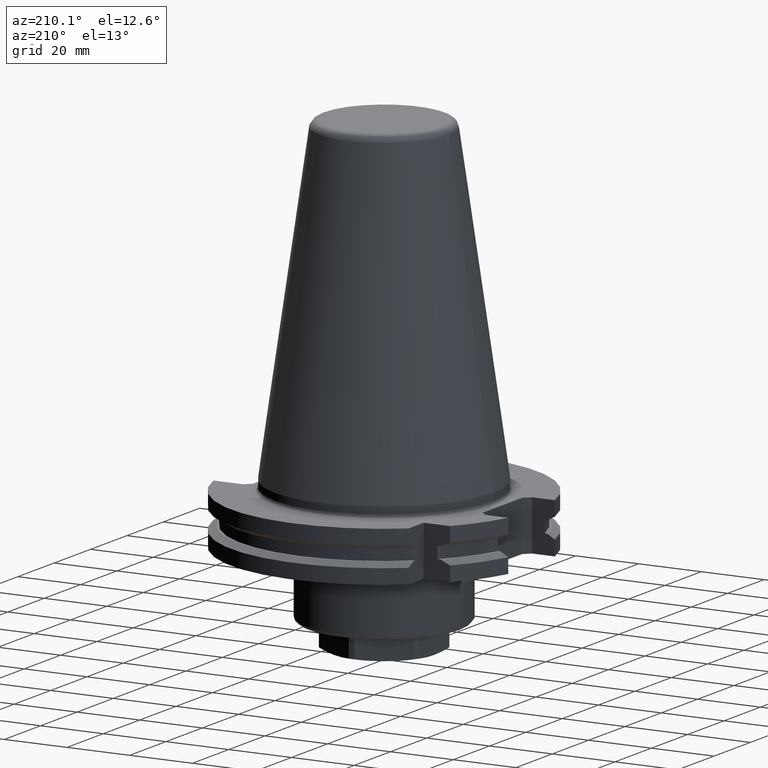
[diagram: clean part render]
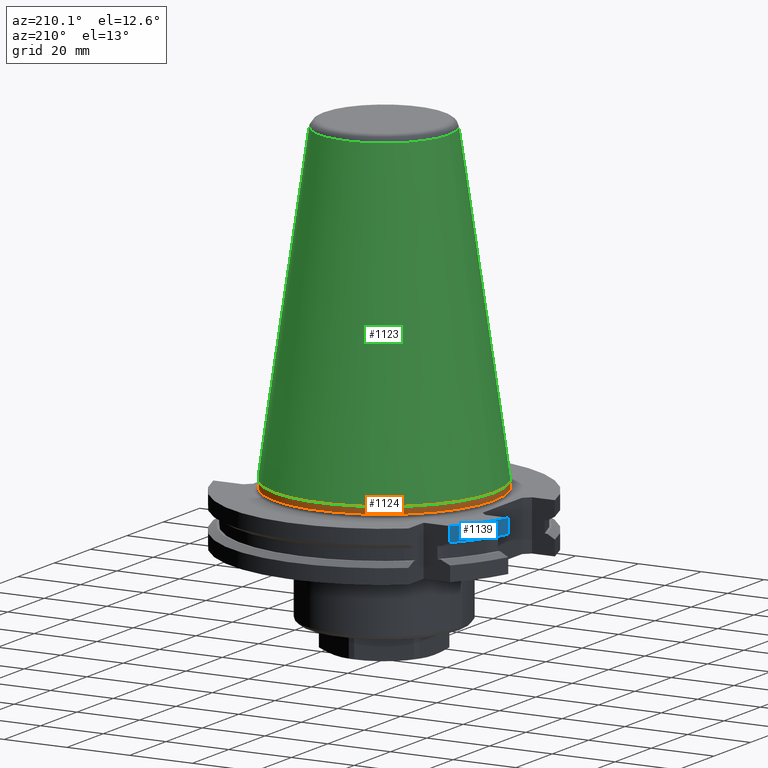
[diagram: same view with three faces highlighted in distinct colors, each labeled with its STEP entity id]
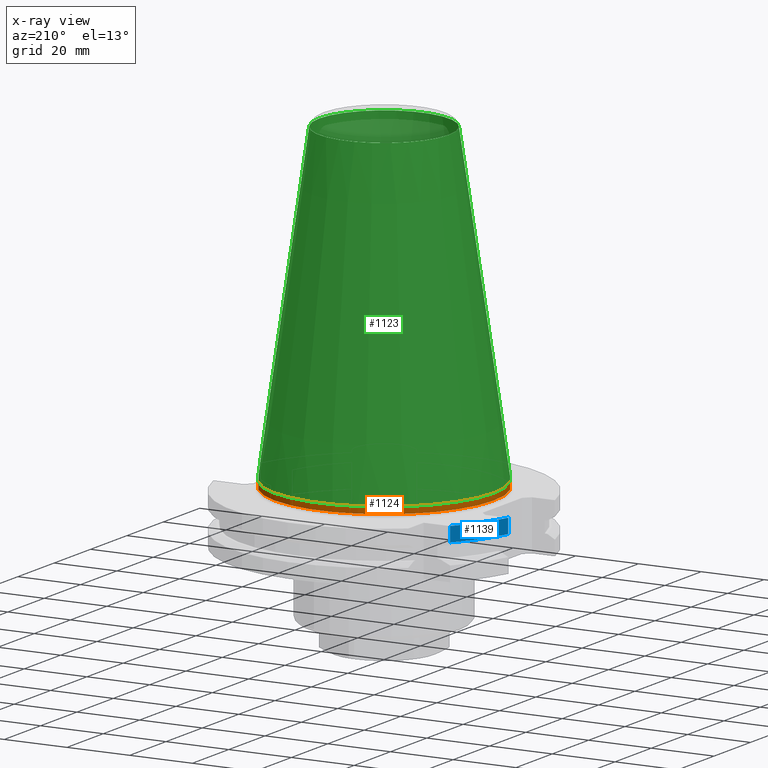
[diagram: x-ray of the same camera — body ghosted, the three highlighted faces saturated]
A machine part, auxiliary view with three faces highlighted in distinct colors.
The next image is the same camera in x-ray (body ghosted, the three faces saturated) — at least one of them is partly hidden behind the body in this view.
Their STEP definitions:

[orange] entity #1124 — the highlighted cylindrical surface (bore or boss wall) has radius 34.925 mm, axis along (0, 0, -1).
#214=CYLINDRICAL_SURFACE('',#1210,34.925);
#254=ORIENTED_EDGE('',*,*,#580,.T.);
#255=ORIENTED_EDGE('',*,*,#579,.T.);
#579=EDGE_CURVE('',#743,#743,#858,.T.);
#580=EDGE_CURVE('',#744,#744,#859,.T.);
#743=VERTEX_POINT('',#1663);
#744=VERTEX_POINT('',#1666);
#858=CIRCLE('',#1209,34.925);
#859=CIRCLE('',#1211,34.925);
#916=EDGE_LOOP('',(#254));
#917=EDGE_LOOP('',(#255));
#1005=FACE_BOUND('',#916,.T.);
#1006=FACE_BOUND('',#917,.T.);
#1124=ADVANCED_FACE('',(#1005,#1006),#214,.T.);
#1209=AXIS2_PLACEMENT_3D('',#1662,#1338,#1339);
#1210=AXIS2_PLACEMENT_3D('',#1664,#1340,#1341);
#1211=AXIS2_PLACEMENT_3D('',#1665,#1342,#1343);
#1338=DIRECTION('',(0.,0.,-1.));
#1339=DIRECTION('',(-1.,0.,0.));
#1340=DIRECTION('',(0.,0.,-1.));
#1341=DIRECTION('',(-1.,0.,0.));
#1342=DIRECTION('',(0.,0.,1.));
#1343=DIRECTION('',(1.,0.,0.));
#1662=CARTESIAN_POINT('',(0.,0.,0.));
#1663=CARTESIAN_POINT('',(-34.925,0.,0.));
#1664=CARTESIAN_POINT('',(0.,0.,-60.));
#1665=CARTESIAN_POINT('',(0.,0.,-2.2));
#1666=CARTESIAN_POINT('',(34.925,0.,-2.2));

[blue] entity #1139 — the highlighted cylindrical surface (partial cylindrical patch) has radius 48.75 mm, axis along (0, 0, -1).
#54=LINE('',#1805,#136);
#55=LINE('',#1809,#137);
#136=VECTOR('',#1435,1000.);
#137=VECTOR('',#1438,1000.);
#219=CYLINDRICAL_SURFACE('',#1242,48.75);
#324=ORIENTED_EDGE('',*,*,#635,.F.);
#325=ORIENTED_EDGE('',*,*,#636,.F.);
#326=ORIENTED_EDGE('',*,*,#637,.T.);
#327=ORIENTED_EDGE('',*,*,#622,.T.);
#622=EDGE_CURVE('',#777,#775,#875,.T.);
#635=EDGE_CURVE('',#786,#775,#54,.F.);
#636=EDGE_CURVE('',#787,#786,#876,.T.);
#637=EDGE_CURVE('',#787,#777,#55,.F.);
#775=VERTEX_POINT('',#1780);
#777=VERTEX_POINT('',#1783);
#786=VERTEX_POINT('',#1806);
#787=VERTEX_POINT('',#1808);
#875=CIRCLE('',#1241,48.75);
#876=CIRCLE('',#1243,48.75);
#933=EDGE_LOOP('',(#324,#325,#326,#327));
#1022=FACE_BOUND('',#933,.T.);
#1139=ADVANCED_FACE('',(#1022),#219,.T.);
#1241=AXIS2_PLACEMENT_3D('',#1782,#1419,#1420);
#1242=AXIS2_PLACEMENT_3D('',#1804,#1433,#1434);
#1243=AXIS2_PLACEMENT_3D('',#1807,#1436,#1437);
#1419=DIRECTION('',(0.,0.,-1.));
#1420=DIRECTION('',(-1.,0.,0.));
#1433=DIRECTION('',(0.,0.,-1.));
#1434=DIRECTION('',(-1.,0.,0.));
#1435=DIRECTION('',(0.,0.,-1.));
#1436=DIRECTION('',(0.,0.,-1.));
#1437=DIRECTION('',(-1.,0.,0.));
#1438=DIRECTION('',(0.,0.,-1.));
#1780=CARTESIAN_POINT('',(-38.4260653723485,30.,-3.2));
#1782=CARTESIAN_POINT('',(0.,0.,-3.2));
#1783=CARTESIAN_POINT('',(-47.025950282796,12.85,-3.2));
#1804=CARTESIAN_POINT('',(0.,0.,-60.));
#1805=CARTESIAN_POINT('',(-38.4260653723485,30.,-60.));
#1806=CARTESIAN_POINT('',(-38.4260653723485,30.,-7.85240473580835));
#1807=CARTESIAN_POINT('',(0.,0.,-7.85240473580835));
#1808=CARTESIAN_POINT('',(-47.025950282796,12.85,-7.85240473580835));
#1809=CARTESIAN_POINT('',(-47.025950282796,12.85,-60.));

[green] entity #1123 — the highlighted conical surface has half-angle 8.13 deg.
#234=CONICAL_SURFACE('',#1208,34.925,0.141897013516391);
#252=ORIENTED_EDGE('',*,*,#578,.T.);
#253=ORIENTED_EDGE('',*,*,#579,.F.);
#578=EDGE_CURVE('',#742,#742,#857,.F.);
#579=EDGE_CURVE('',#743,#743,#858,.T.);
#742=VERTEX_POINT('',#1660);
#743=VERTEX_POINT('',#1663);
#857=CIRCLE('',#1207,20.695925134736);
#858=CIRCLE('',#1209,34.925);
#914=EDGE_LOOP('',(#252));
#915=EDGE_LOOP('',(#253));
#1003=FACE_BOUND('',#914,.T.);
#1004=FACE_BOUND('',#915,.T.);
#1123=ADVANCED_FACE('',(#1003,#1004),#234,.T.);
#1207=AXIS2_PLACEMENT_3D('',#1659,#1334,#1335);
#1208=AXIS2_PLACEMENT_3D('',#1661,#1336,#1337);
#1209=AXIS2_PLACEMENT_3D('',#1662,#1338,#1339);
#1334=DIRECTION('',(0.,0.,1.));
#1335=DIRECTION('',(1.,0.,0.));
#1336=DIRECTION('',(0.,0.,-1.));
#1337=DIRECTION('',(-1.,0.,0.));
#1338=DIRECTION('',(0.,0.,-1.));
#1339=DIRECTION('',(-1.,0.,0.));
#1659=CARTESIAN_POINT('',(0.,0.,99.6035532889062));
#1660=CARTESIAN_POINT('',(20.695925134736,0.,99.6035532889062));
#1661=CARTESIAN_POINT('',(0.,0.,0.));
#1662=CARTESIAN_POINT('',(0.,0.,0.));
#1663=CARTESIAN_POINT('',(-34.925,0.,0.));